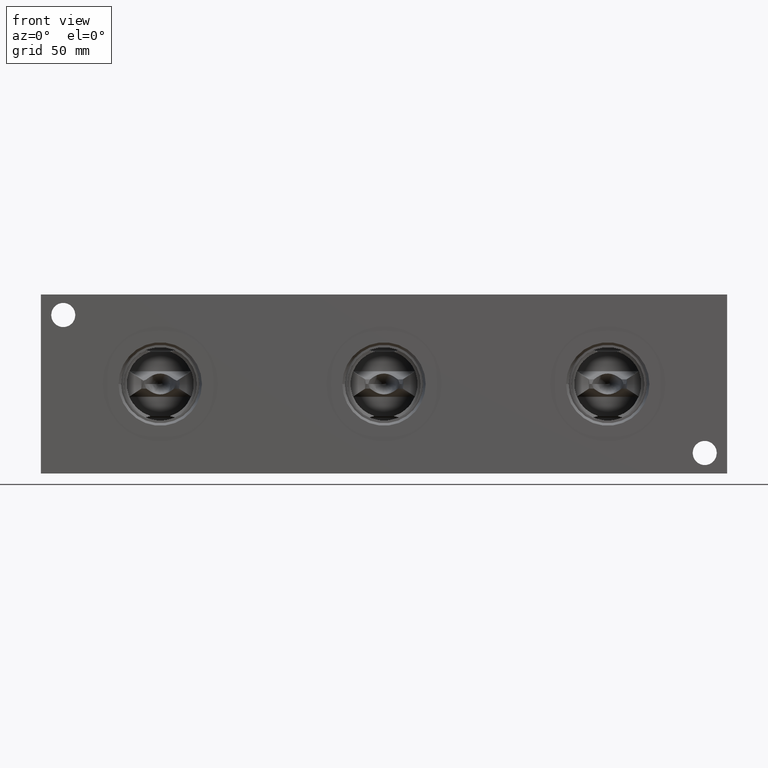
[diagram: clean part render]
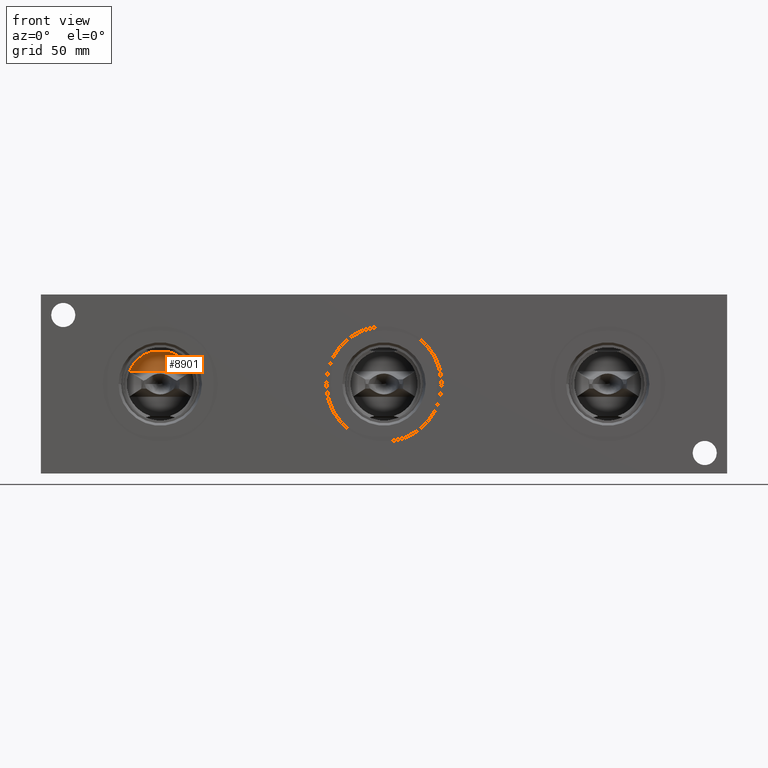
[diagram: same view with one face highlighted and labeled with its STEP entity id]
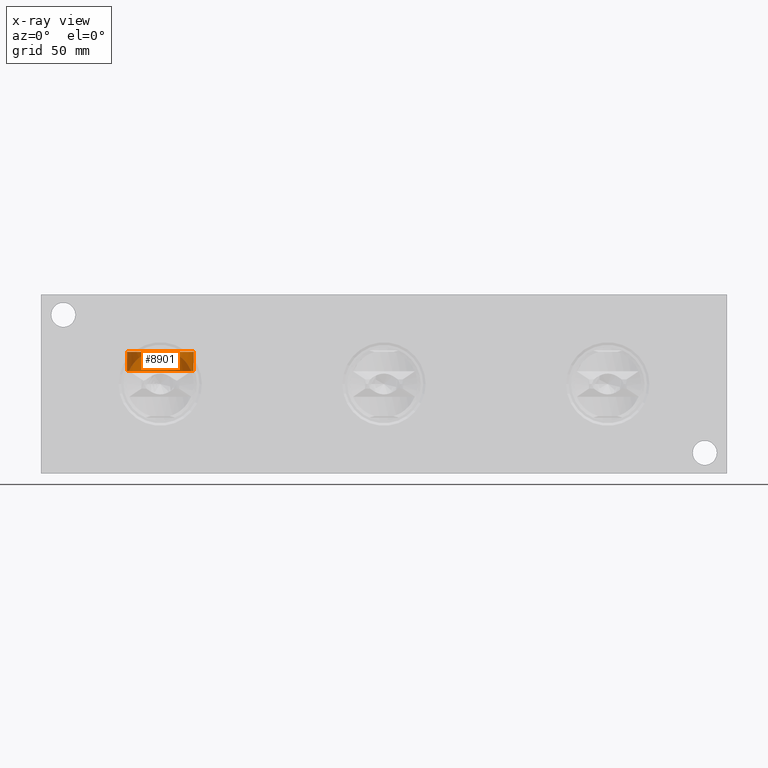
[diagram: x-ray of the same camera — body ghosted, the highlighted face saturated]
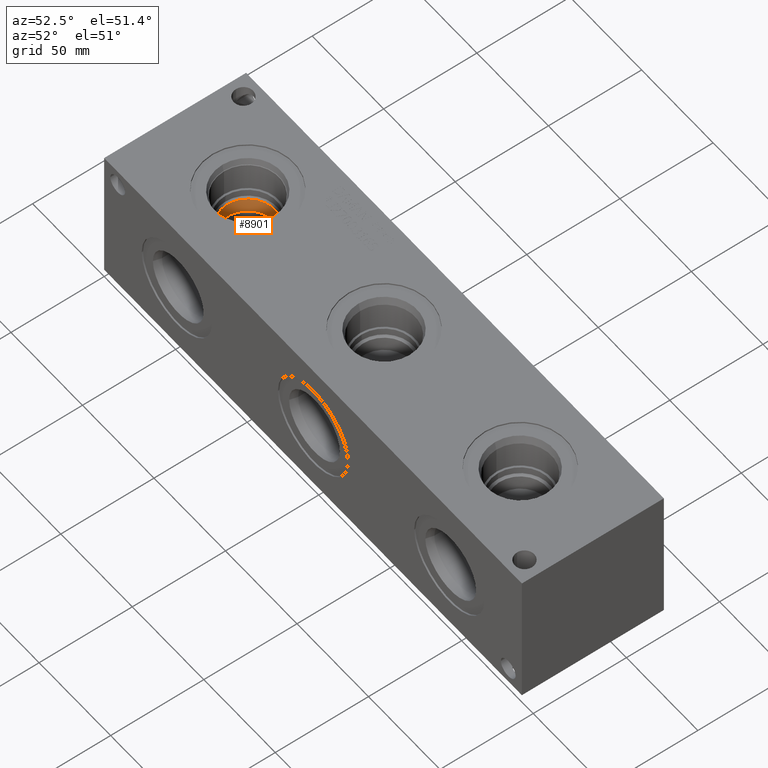
[diagram: same view with one face highlighted and labeled with its STEP entity id]
A machine part, front view. The second image highlights one B-rep face of the part: STEP entity #8901.
The next image is the same camera in x-ray: the body ghosted, the highlighted face saturated — about 2% of this face is hidden behind the body in this view.
A second angle (auxiliary view) of the same face is appended — the face is thin or edge-on in the first view.
In plain terms, the highlighted cylindrical surface (edge-blend (fillet) strip) has radius 14.2875 mm, axis along (0, 0, 1).
Its self-contained STEP definition (entity closure, byte-faithful):
#30=ELLIPSE('',#9200,20.2055762724056,14.2875);
#43=ELLIPSE('',#9269,20.2055762724056,14.2875);
#121=CYLINDRICAL_SURFACE('',#9530,14.2875);
#392=CIRCLE('',#9525,14.2875);
#395=CIRCLE('',#9531,14.2875);
#685=B_SPLINE_CURVE_WITH_KNOTS('',3,(#14930,#14931,#14932,#14933),
 .UNSPECIFIED.,.F.,.F.,(4,4),(7.48024475698542,7.48033656078081),
 .UNSPECIFIED.);
#703=B_SPLINE_CURVE_WITH_KNOTS('',3,(#15303,#15304,#15305,#15306),
 .UNSPECIFIED.,.F.,.F.,(4,4),(13.3833942654919,13.3834860692873),
 .UNSPECIFIED.);
#1269=FACE_OUTER_BOUND('',#1785,.T.);
#1785=EDGE_LOOP('',(#7813,#7814,#7815,#7816,#7817,#7818));
#3944=VERTEX_POINT('',#14927);
#3945=VERTEX_POINT('',#14929);
#3948=VERTEX_POINT('',#14945);
#3991=VERTEX_POINT('',#15133);
#3992=VERTEX_POINT('',#15135);
#4037=VERTEX_POINT('',#15296);
#5065=EDGE_CURVE('',#3945,#3944,#685,.T.);
#5070=EDGE_CURVE('',#3944,#3948,#30,.T.);
#5137=EDGE_CURVE('',#3992,#3991,#43,.T.);
#5212=EDGE_CURVE('',#3991,#4037,#703,.T.);
#5364=EDGE_CURVE('',#3945,#4037,#392,.T.);
#5369=EDGE_CURVE('',#3992,#3948,#395,.T.);
#7813=ORIENTED_EDGE('',*,*,#5212,.T.);
#7814=ORIENTED_EDGE('',*,*,#5364,.F.);
#7815=ORIENTED_EDGE('',*,*,#5065,.T.);
#7816=ORIENTED_EDGE('',*,*,#5070,.T.);
#7817=ORIENTED_EDGE('',*,*,#5369,.F.);
#7818=ORIENTED_EDGE('',*,*,#5137,.T.);
#8901=ADVANCED_FACE('',(#1269),#121,.F.);
#9200=AXIS2_PLACEMENT_3D('',#14950,#10763,#10764);
#9269=AXIS2_PLACEMENT_3D('',#15136,#10910,#10911);
#9525=AXIS2_PLACEMENT_3D('',#15642,#11485,#11486);
#9530=AXIS2_PLACEMENT_3D('',#15651,#11497,#11498);
#9531=AXIS2_PLACEMENT_3D('',#15652,#11499,#11500);
#10763=DIRECTION('center_axis',(0.,-0.707106781186548,-0.707106781186548));
#10764=DIRECTION('ref_axis',(0.,-0.707106781186548,0.707106781186548));
#10910=DIRECTION('center_axis',(0.,-0.707106781186548,-0.707106781186548));
#10911=DIRECTION('ref_axis',(0.,-0.707106781186548,0.707106781186548));
#11485=DIRECTION('center_axis',(0.,0.,1.));
#11486=DIRECTION('ref_axis',(1.,0.,0.));
#11497=DIRECTION('center_axis',(0.,0.,1.));
#11498=DIRECTION('ref_axis',(-1.83697019872103E-16,1.,0.));
#11499=DIRECTION('center_axis',(0.,0.,-1.));
#11500=DIRECTION('ref_axis',(1.,0.,0.));
#14927=CARTESIAN_POINT('',(64.0059997267113,32.64709,43.55291));
#14929=CARTESIAN_POINT('',(64.0060720393762,32.6472651319905,43.55194));
#14930=CARTESIAN_POINT('Ctrl Pts',(64.0060720393762,32.6472651319905,43.55194));
#14931=CARTESIAN_POINT('Ctrl Pts',(64.0060479376673,32.6472067596488,43.5522633307146));
#14932=CARTESIAN_POINT('Ctrl Pts',(64.0060238330753,32.6471483814213,43.5525866690172));
#14933=CARTESIAN_POINT('Ctrl Pts',(64.0059997267113,32.64709,43.55291));
#14945=CARTESIAN_POINT('',(54.8521386223474,24.3991668561624,51.8008331438377));
#14950=CARTESIAN_POINT('Origin',(50.8,38.1,38.1));
#15133=CARTESIAN_POINT('',(37.5940002732887,32.64709,43.55291));
#15135=CARTESIAN_POINT('',(46.7478613776526,24.3991668561624,51.8008331438377));
#15136=CARTESIAN_POINT('Origin',(50.8,38.1,38.1));
#15296=CARTESIAN_POINT('',(37.5939279606238,32.6472651319905,43.55194));
#15303=CARTESIAN_POINT('Ctrl Pts',(37.5940002732887,32.64709,43.55291));
#15304=CARTESIAN_POINT('Ctrl Pts',(37.5939761669246,32.6471483814215,43.5525866690163));
#15305=CARTESIAN_POINT('Ctrl Pts',(37.5939520623327,32.6472067596486,43.5522633307156));
#15306=CARTESIAN_POINT('Ctrl Pts',(37.5939279606238,32.6472651319905,43.55194));
#15642=CARTESIAN_POINT('Origin',(50.8,38.1,43.55194));
#15651=CARTESIAN_POINT('Origin',(50.8,38.1,59.87597));
#15652=CARTESIAN_POINT('Origin',(50.8,38.1,51.8008331438377));